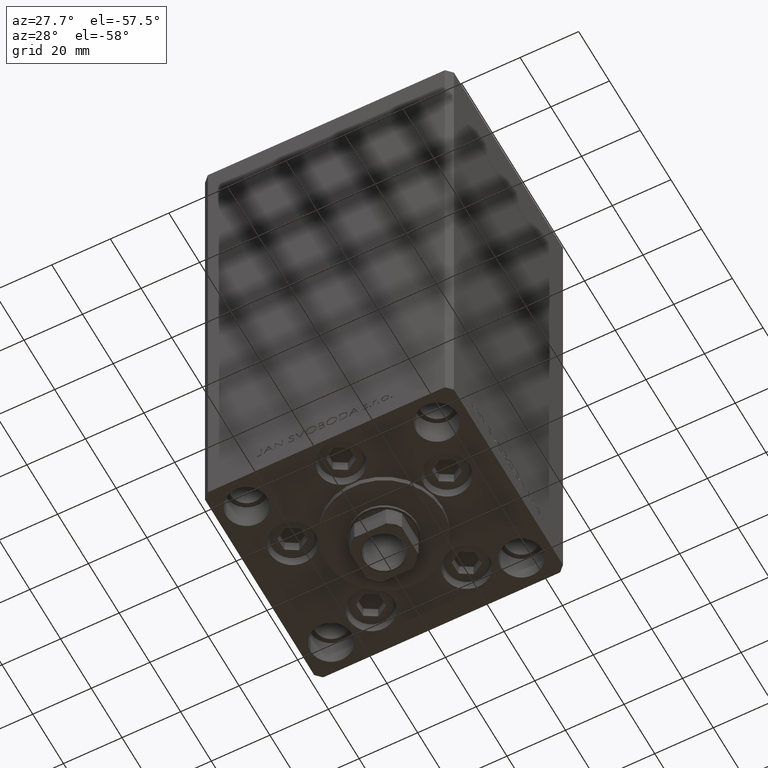
[diagram: clean part render]
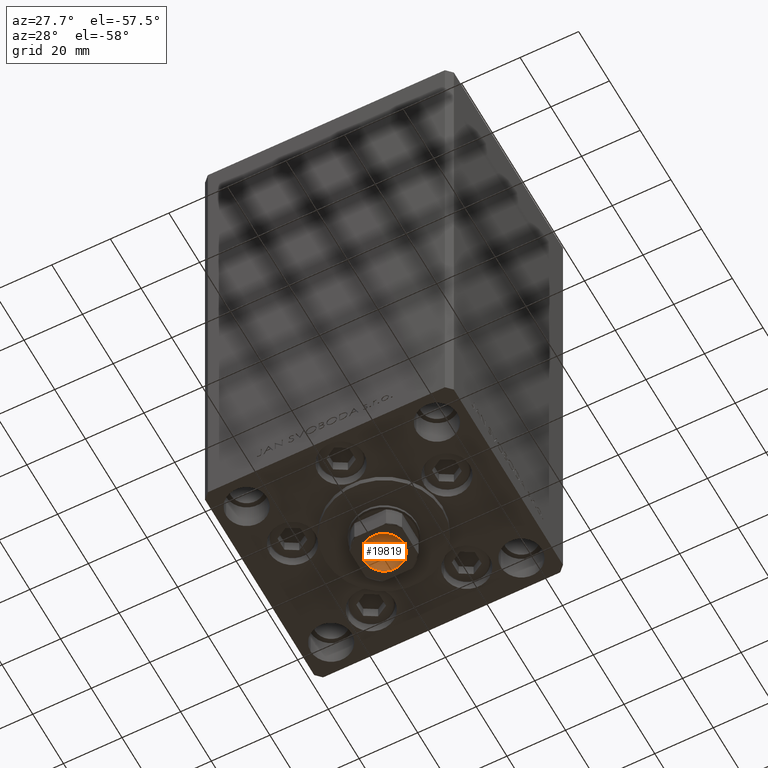
[diagram: same view with one face highlighted and labeled with its STEP entity id]
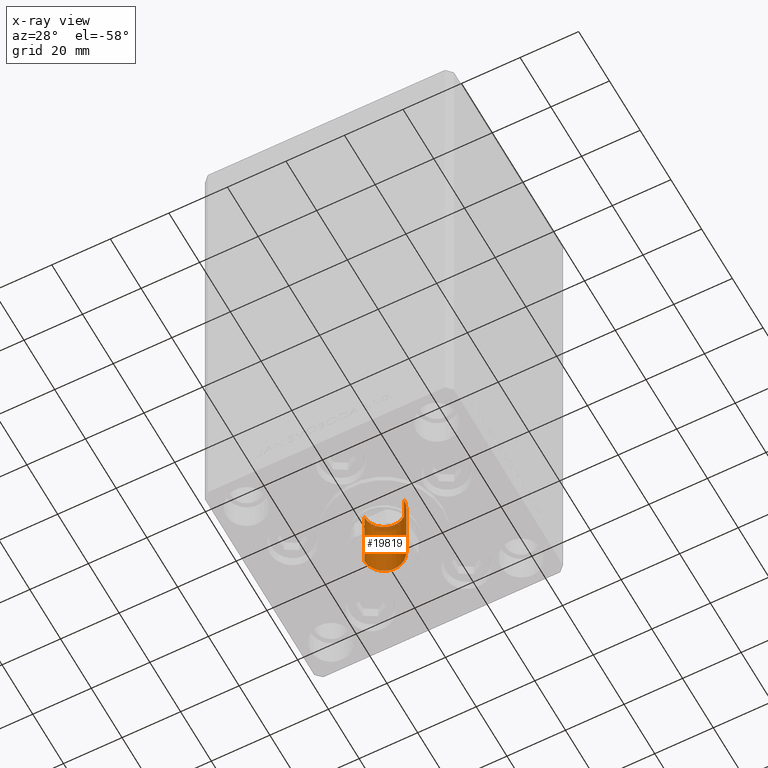
[diagram: x-ray of the same camera — body ghosted, the highlighted face saturated]
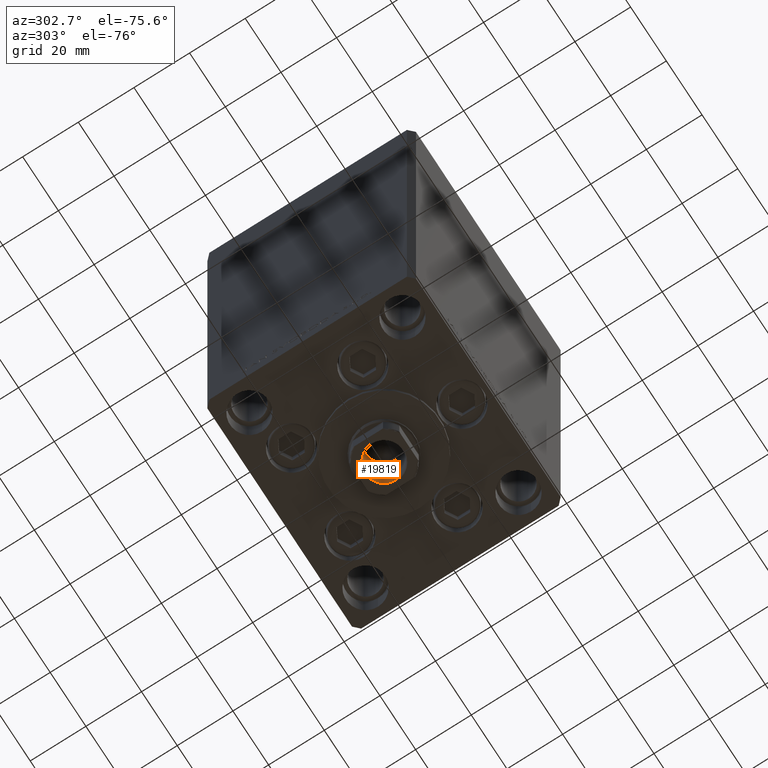
[diagram: same view with one face highlighted and labeled with its STEP entity id]
A machine part, auxiliary view. The second image highlights one B-rep face of the part: STEP entity #19819.
The next image is the same camera in x-ray: the body ghosted, the highlighted face saturated — about 7% of this face is hidden behind the body in this view.
A second angle (auxiliary view) of the same face is appended — the face is thin or edge-on in the first view.
In plain terms, the highlighted cylindrical surface (edge-blend (fillet) strip) has radius 6.75 mm, axis along (0, 0, -1).
Its self-contained STEP definition (entity closure, byte-faithful):
#272 = AXIS2_PLACEMENT_3D ( 'NONE', #45258, #19021, #42048 ) ;
#4320 = CARTESIAN_POINT ( 'NONE',  ( -6.749999999999993783, 8.266365894244626445E-16, 130.7500000000000000 ) ) ;
#4589 = ORIENTED_EDGE ( 'NONE', *, *, #39490, .F. ) ;
#4630 = CARTESIAN_POINT ( 'NONE',  ( 6.749999999999995559, 0.000000000000000000, 155.4499999999999886 ) ) ;
#5886 = VECTOR ( 'NONE', #21355, 1000.000000000000000 ) ;
#6402 = VERTEX_POINT ( 'NONE', #4320 ) ;
#7329 = CARTESIAN_POINT ( 'NONE',  ( -6.749999999999995559, 8.266365894244628417E-16, 155.7500000000000000 ) ) ;
#8162 = DIRECTION ( 'NONE',  ( -0.000000000000000000, -0.000000000000000000, 1.000000000000000000 ) ) ;
#8789 = CARTESIAN_POINT ( 'NONE',  ( 0.000000000000000000, 0.000000000000000000, 155.7500000000000000 ) ) ;
#14649 = VERTEX_POINT ( 'NONE', #48368 ) ;
#15260 = CIRCLE ( 'NONE', #272, 6.749999999999995559 ) ;
#16780 = ORIENTED_EDGE ( 'NONE', *, *, #35185, .T. ) ;
#16880 = VERTEX_POINT ( 'NONE', #4630 ) ;
#16983 = AXIS2_PLACEMENT_3D ( 'NONE', #34633, #8162, #35369 ) ;
#17550 = CARTESIAN_POINT ( 'NONE',  ( -6.749999999999995559, 8.266365894244628417E-16, 155.4499999999999886 ) ) ;
#18557 = EDGE_LOOP ( 'NONE', ( #4589, #25645, #16780, #43539 ) ) ;
#19021 = DIRECTION ( 'NONE',  ( 0.000000000000000000, 0.000000000000000000, 1.000000000000000000 ) ) ;
#19819 = ADVANCED_FACE ( 'NONE', ( #35009 ), #42442, .F. ) ;
#21355 = DIRECTION ( 'NONE',  ( -0.000000000000000000, -0.000000000000000000, 1.000000000000000000 ) ) ;
#22404 = EDGE_CURVE ( 'NONE', #16880, #38898, #15260, .T. ) ;
#25645 = ORIENTED_EDGE ( 'NONE', *, *, #36838, .F. ) ;
#28037 = CIRCLE ( 'NONE', #16983, 6.749999999999993783 ) ;
#28789 = LINE ( 'NONE', #40181, #5886 ) ;
#31328 = VECTOR ( 'NONE', #44696, 1000.000000000000000 ) ;
#34131 = AXIS2_PLACEMENT_3D ( 'NONE', #8789, #46887, #38735 ) ;
#34633 = CARTESIAN_POINT ( 'NONE',  ( 0.000000000000000000, 0.000000000000000000, 130.7500000000000000 ) ) ;
#35009 = FACE_OUTER_BOUND ( 'NONE', #18557, .T. ) ;
#35185 = EDGE_CURVE ( 'NONE', #14649, #16880, #28789, .T. ) ;
#35369 = DIRECTION ( 'NONE',  ( 1.000000000000000000, 0.000000000000000000, 0.000000000000000000 ) ) ;
#36838 = EDGE_CURVE ( 'NONE', #14649, #6402, #28037, .T. ) ;
#37021 = LINE ( 'NONE', #7329, #31328 ) ;
#38735 = DIRECTION ( 'NONE',  ( 1.000000000000000000, 0.000000000000000000, 0.000000000000000000 ) ) ;
#38898 = VERTEX_POINT ( 'NONE', #17550 ) ;
#39490 = EDGE_CURVE ( 'NONE', #6402, #38898, #37021, .T. ) ;
#40181 = CARTESIAN_POINT ( 'NONE',  ( 6.749999999999995559, 0.000000000000000000, 155.7500000000000000 ) ) ;
#42048 = DIRECTION ( 'NONE',  ( 1.000000000000000000, 0.000000000000000000, 0.000000000000000000 ) ) ;
#42442 = CYLINDRICAL_SURFACE ( 'NONE', #34131, 6.749999999999995559 ) ;
#43539 = ORIENTED_EDGE ( 'NONE', *, *, #22404, .T. ) ;
#44696 = DIRECTION ( 'NONE',  ( -0.000000000000000000, -0.000000000000000000, 1.000000000000000000 ) ) ;
#45258 = CARTESIAN_POINT ( 'NONE',  ( 0.000000000000000000, 0.000000000000000000, 155.4499999999999886 ) ) ;
#46887 = DIRECTION ( 'NONE',  ( -0.000000000000000000, -0.000000000000000000, 1.000000000000000000 ) ) ;
#48368 = CARTESIAN_POINT ( 'NONE',  ( 6.749999999999993783, 0.000000000000000000, 130.7500000000000000 ) ) ;